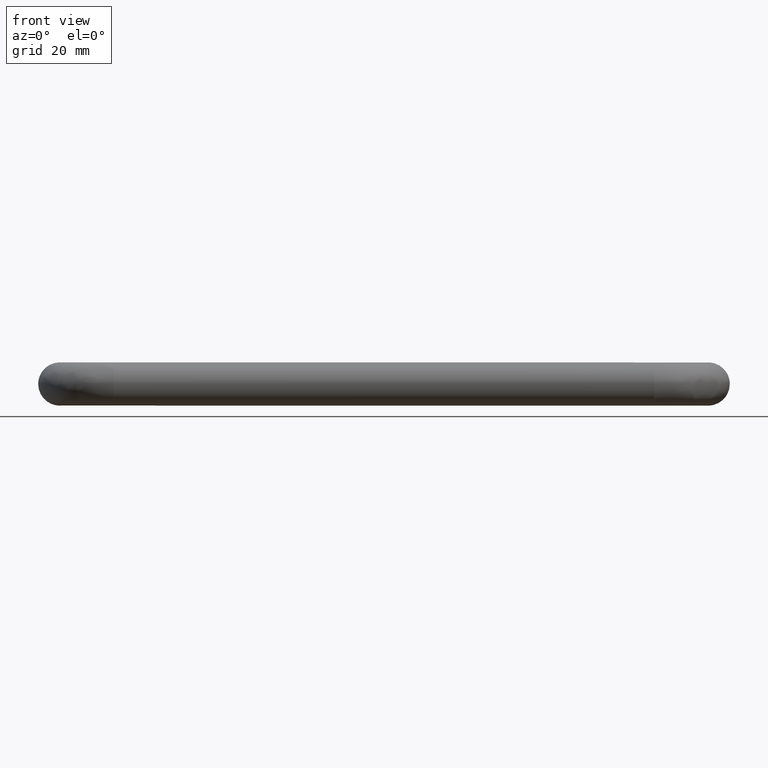
[diagram: clean part render]
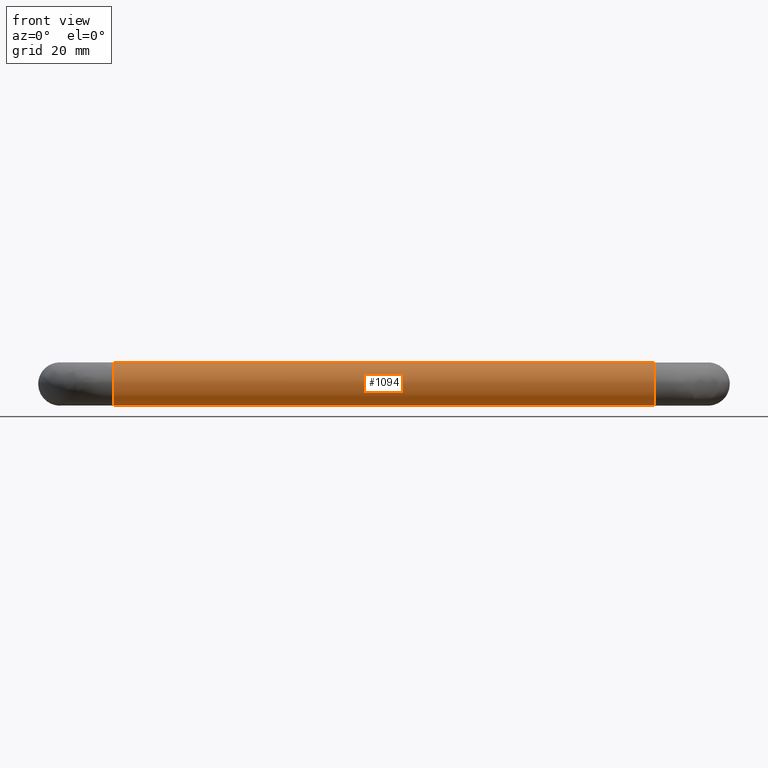
[diagram: same view with one face highlighted and labeled with its STEP entity id]
A machine part, front view. The second image highlights one B-rep face of the part: STEP entity #1094.
In plain terms, the highlighted face is a freeform B-spline surface patch.
Its self-contained STEP definition (entity closure, byte-faithful):
#924=CARTESIAN_POINT('',(11.249999998756788,-33.626367044185031,2.669095138090656));
#925=CARTESIAN_POINT('',(11.249999998756792,-34.027321464704933,3.476328217622891));
#926=CARTESIAN_POINT('',(11.249999998756790,-34.647753773926283,4.130127454162523));
#927=CARTESIAN_POINT('',(11.249999998756790,-38.777881228088788,8.482373680236247));
#928=CARTESIAN_POINT('',(11.249999998756790,-43.130127454162519,4.352246226073724));
#929=CARTESIAN_POINT('',(11.249999998756790,-47.482373680236243,0.222118771911202));
#930=CARTESIAN_POINT('',(11.249999998756790,-43.352246226073717,-4.130127454162523));
#931=CARTESIAN_POINT('',(11.249999998756790,-39.222118771911205,-8.482373680236247));
#932=CARTESIAN_POINT('',(11.249999998756790,-34.869872545837481,-4.352246226073724));
#933=CARTESIAN_POINT('',(168.843750001397410,-33.626367044185002,2.669095138090656));
#934=CARTESIAN_POINT('',(168.843750001397440,-34.027321464704912,3.476328217622891));
#935=CARTESIAN_POINT('',(168.843750001397410,-34.647753773926247,4.130127454162523));
#936=CARTESIAN_POINT('',(168.843750001397470,-38.777881228088788,8.482373680236247));
#937=CARTESIAN_POINT('',(168.843750001397410,-43.130127454162512,4.352246226073724));
#938=CARTESIAN_POINT('',(168.843750001397470,-47.482373680236243,0.222118771911202));
#939=CARTESIAN_POINT('',(168.843750001397410,-43.352246226073703,-4.130127454162523));
#940=CARTESIAN_POINT('',(168.843750001397470,-39.222118771911184,-8.482373680236247));
#941=CARTESIAN_POINT('',(168.843750001397410,-34.869872545837453,-4.352246226073724));
#949=(BOUNDED_SURFACE()B_SPLINE_SURFACE(2,1,((#924,#933),(#925,#934),(#926,#935),(#927,#936),(#928,#937),(#929,#938),(#930,#939),(#931,#940),(#932,#941)),.UNSPECIFIED.,.F.,.F.,.U.)B_SPLINE_SURFACE_WITH_KNOTS((3,2,2,2,3),(2,2),(0.0,1.988225099390856,11.929350596345140,21.870476093299420,31.811601590253701),(0.0,157.593750002640690),.UNSPECIFIED.)GEOMETRIC_REPRESENTATION_ITEM()RATIONAL_B_SPLINE_SURFACE(((0.906274169979695,0.906274169979695),(0.941421356237309,0.941421356237309),(1.0,1.0),(0.707106781186548,0.707106781186548),(1.0,1.0),(0.707106781186548,0.707106781186548),(1.0,1.0),(0.707106781186548,0.707106781186548),(1.0,1.0)))REPRESENTATION_ITEM('')SURFACE());
#950=CARTESIAN_POINT('',(165.0,-33.626367044200506,2.669095138121863));
#951=VERTEX_POINT('',#950);
#952=CARTESIAN_POINT('',(165.000000000054090,-39.418399510324463,5.985394042981652));
#953=VERTEX_POINT('',#952);
#954=CARTESIAN_POINT('',(164.999999999999970,-33.626367044200506,2.669095138121863));
#955=CARTESIAN_POINT('',(164.999999999999970,-35.280834709864202,6.000000000000001));
#956=CARTESIAN_POINT('',(165.0,-39.0,6.0));
#957=CARTESIAN_POINT('',(165.000000000000030,-39.209454696123281,6.0));
#958=CARTESIAN_POINT('',(165.000000000054110,-39.418399510324463,5.985394042981652));
#966=(BOUNDED_CURVE()B_SPLINE_CURVE(2,(#954,#955,#956,#957,#958),.UNSPECIFIED.,.F.,.U.)B_SPLINE_CURVE_WITH_KNOTS((3,2,3),(0.575619190624198,0.750000000000000,0.762166313514967),.UNSPECIFIED.)CURVE()GEOMETRIC_REPRESENTATION_ITEM()RATIONAL_B_SPLINE_CURVE((0.876408099966890,0.795700173770505,1.0,0.985746277094031,0.972879876281099))REPRESENTATION_ITEM(''));
#967=EDGE_CURVE('',#951,#953,#966,.T.);
#968=ORIENTED_EDGE('',*,*,#967,.F.);
#969=CARTESIAN_POINT('',(14.999999999875209,-33.626367044269713,2.669095138086312));
#970=VERTEX_POINT('',#969);
#971=CARTESIAN_POINT('',(14.999999999875209,-33.626367044269713,2.669095138086312));
#972=CARTESIAN_POINT('',(165.0,-33.626367044200506,2.669095138121863));
#973=QUASI_UNIFORM_CURVE('',1,(#971,#972),.UNSPECIFIED.,.F.,.U.);
#974=EDGE_CURVE('',#970,#951,#973,.T.);
#975=ORIENTED_EDGE('',*,*,#974,.F.);
#976=CARTESIAN_POINT('',(14.999999998819630,-38.924603759046533,5.999526265202118));
#977=VERTEX_POINT('',#976);
#978=CARTESIAN_POINT('',(14.999999999875204,-33.626367044269713,2.669095138086313));
#979=CARTESIAN_POINT('',(14.999999999550189,-35.257710391551527,5.953444296438446));
#980=CARTESIAN_POINT('',(14.999999998819625,-38.924603759046526,5.999526265202118));
#988=(BOUNDED_CURVE()B_SPLINE_CURVE(2,(#978,#979,#980),.UNSPECIFIED.,.F.,.U.)B_SPLINE_CURVE_WITH_KNOTS((3,3),(0.575619190622085,0.747784295824798),.UNSPECIFIED.)CURVE()GEOMETRIC_REPRESENTATION_ITEM()RATIONAL_B_SPLINE_CURVE((0.876408099968847,0.796725658680578,0.994854295420916))REPRESENTATION_ITEM(''));
#989=EDGE_CURVE('',#970,#977,#988,.T.);
#990=ORIENTED_EDGE('',*,*,#989,.T.);
#991=CARTESIAN_POINT('',(15.0,-45.0,0.0));
#992=VERTEX_POINT('',#991);
#993=CARTESIAN_POINT('',(14.999999998819629,-38.924603759046533,5.999526265202118));
#994=CARTESIAN_POINT('',(15.0,-38.962300390395107,6.0));
#995=CARTESIAN_POINT('',(15.0,-39.0,6.0));
#996=CARTESIAN_POINT('',(14.999999999999995,-45.0,6.0));
#997=CARTESIAN_POINT('',(15.0,-45.0,0.0));
#1005=(BOUNDED_CURVE()B_SPLINE_CURVE(2,(#993,#994,#995,#996,#997),.UNSPECIFIED.,.F.,.U.)B_SPLINE_CURVE_WITH_KNOTS((3,2,3),(0.747784295824797,0.750000000000000,1.0),.UNSPECIFIED.)CURVE()GEOMETRIC_REPRESENTATION_ITEM()RATIONAL_B_SPLINE_CURVE((0.994854295420915,0.997404141088746,1.0,0.707106781186548,1.0))REPRESENTATION_ITEM(''));
#1006=EDGE_CURVE('',#977,#992,#1005,.T.);
#1007=ORIENTED_EDGE('',*,*,#1006,.T.);
#1008=CARTESIAN_POINT('',(14.999999999448599,-39.418399512570531,-5.985394042824643));
#1009=VERTEX_POINT('',#1008);
#1010=CARTESIAN_POINT('',(15.0,-45.0,0.0));
#1011=CARTESIAN_POINT('',(15.000000000000007,-44.999999999999986,-5.595221077756236));
#1012=CARTESIAN_POINT('',(14.999999999448601,-39.418399512570531,-5.985394042824643));
#1020=(BOUNDED_CURVE()B_SPLINE_CURVE(2,(#1010,#1011,#1012),.UNSPECIFIED.,.F.,.U.)B_SPLINE_CURVE_WITH_KNOTS((3,3),(0.0,0.237833686355958),.UNSPECIFIED.)CURVE()GEOMETRIC_REPRESENTATION_ITEM()RATIONAL_B_SPLINE_CURVE((1.0,0.721360504243737,0.972879876008094))REPRESENTATION_ITEM(''));
#1021=EDGE_CURVE('',#992,#1009,#1020,.T.);
#1022=ORIENTED_EDGE('',*,*,#1021,.T.);
#1023=CARTESIAN_POINT('',(15.0,-34.869873054902463,-4.352246709158238));
#1024=VERTEX_POINT('',#1023);
#1025=CARTESIAN_POINT('',(14.999999999448598,-39.418399512570531,-5.985394042824644));
#1026=CARTESIAN_POINT('',(15.0,-39.209454698377556,-6.0));
#1027=CARTESIAN_POINT('',(15.0,-39.0,-6.0));
#1028=CARTESIAN_POINT('',(15.000000000000004,-36.606243537657747,-6.000000000000001));
#1029=CARTESIAN_POINT('',(15.000000000000005,-34.869873054902463,-4.352246709158238));
#1037=(BOUNDED_CURVE()B_SPLINE_CURVE(2,(#1025,#1026,#1027,#1028,#1029),.UNSPECIFIED.,.F.,.U.)B_SPLINE_CURVE_WITH_KNOTS((3,2,3),(0.237833686355959,0.250000000000000,0.371049491355408),.UNSPECIFIED.)CURVE()GEOMETRIC_REPRESENTATION_ITEM()RATIONAL_B_SPLINE_CURVE((0.972879876008094,0.985746276942811,1.0,0.858181699364734,0.853699663983766))REPRESENTATION_ITEM(''));
#1038=EDGE_CURVE('',#1009,#1024,#1037,.T.);
#1039=ORIENTED_EDGE('',*,*,#1038,.T.);
#1040=CARTESIAN_POINT('',(165.000000000420700,-34.869874496015584,-4.352248076460115));
#1041=VERTEX_POINT('',#1040);
#1042=CARTESIAN_POINT('',(15.0,-34.869873054902463,-4.352246709158238));
#1043=CARTESIAN_POINT('',(165.000000000420700,-34.869874496015584,-4.352248076460115));
#1044=QUASI_UNIFORM_CURVE('',1,(#1042,#1043),.UNSPECIFIED.,.F.,.U.);
#1045=EDGE_CURVE('',#1024,#1041,#1044,.T.);
#1046=ORIENTED_EDGE('',*,*,#1045,.T.);
#1047=CARTESIAN_POINT('',(165.000000001333010,-38.924603758927660,-5.999526265200624));
#1048=VERTEX_POINT('',#1047);
#1049=CARTESIAN_POINT('',(165.000000001333060,-38.924603758927660,-5.999526265200625));
#1050=CARTESIAN_POINT('',(165.000000000804310,-36.574624527566719,-5.969993999322286));
#1051=CARTESIAN_POINT('',(165.000000000420670,-34.869874496015569,-4.352248076460115));
#1059=(BOUNDED_CURVE()B_SPLINE_CURVE(2,(#1049,#1050,#1051),.UNSPECIFIED.,.F.,.U.)B_SPLINE_CURVE_WITH_KNOTS((3,3),(0.252215704182171,0.371049459051509),.UNSPECIFIED.)CURVE()GEOMETRIC_REPRESENTATION_ITEM()RATIONAL_B_SPLINE_CURVE((0.994854295404876,0.858099696835444,0.853699666375974))REPRESENTATION_ITEM(''));
#1060=EDGE_CURVE('',#1048,#1041,#1059,.T.);
#1061=ORIENTED_EDGE('',*,*,#1060,.F.);
#1062=CARTESIAN_POINT('',(165.0,-45.0,0.0));
#1063=VERTEX_POINT('',#1062);
#1064=CARTESIAN_POINT('',(165.0,-45.0,0.0));
#1065=CARTESIAN_POINT('',(165.000000000000090,-45.0,-6.0));
#1066=CARTESIAN_POINT('',(165.0,-39.0,-6.0));
#1067=CARTESIAN_POINT('',(164.999999999999940,-38.962300390276233,-6.0));
#1068=CARTESIAN_POINT('',(165.000000001332980,-38.924603758927667,-5.999526265200625));
#1076=(BOUNDED_CURVE()B_SPLINE_CURVE(2,(#1064,#1065,#1066,#1067,#1068),.UNSPECIFIED.,.F.,.U.)B_SPLINE_CURVE_WITH_KNOTS((3,2,3),(0.0,0.250000000000000,0.252215704182171),.UNSPECIFIED.)CURVE()GEOMETRIC_REPRESENTATION_ITEM()RATIONAL_B_SPLINE_CURVE((1.0,0.707106781186548,1.0,0.997404141080582,0.994854295404876))REPRESENTATION_ITEM(''));
#1077=EDGE_CURVE('',#1063,#1048,#1076,.T.);
#1078=ORIENTED_EDGE('',*,*,#1077,.F.);
#1079=CARTESIAN_POINT('',(165.000000000054110,-39.418399510324463,5.985394042981652));
#1080=CARTESIAN_POINT('',(165.000000000000030,-44.999999999999993,5.595221081965786));
#1081=CARTESIAN_POINT('',(165.0,-45.0,0.0));
#1089=(BOUNDED_CURVE()B_SPLINE_CURVE(2,(#1079,#1080,#1081),.UNSPECIFIED.,.F.,.U.)B_SPLINE_CURVE_WITH_KNOTS((3,3),(0.762166313514966,1.0),.UNSPECIFIED.)CURVE()GEOMETRIC_REPRESENTATION_ITEM()RATIONAL_B_SPLINE_CURVE((0.972879876281100,0.721360504092516,1.0))REPRESENTATION_ITEM(''));
#1090=EDGE_CURVE('',#953,#1063,#1089,.T.);
#1091=ORIENTED_EDGE('',*,*,#1090,.F.);
#1092=EDGE_LOOP('',(#968,#975,#990,#1007,#1022,#1039,#1046,#1061,#1078,#1091));
#1093=FACE_OUTER_BOUND('',#1092,.T.);
#1094=ADVANCED_FACE('',(#1093),#949,.T.);